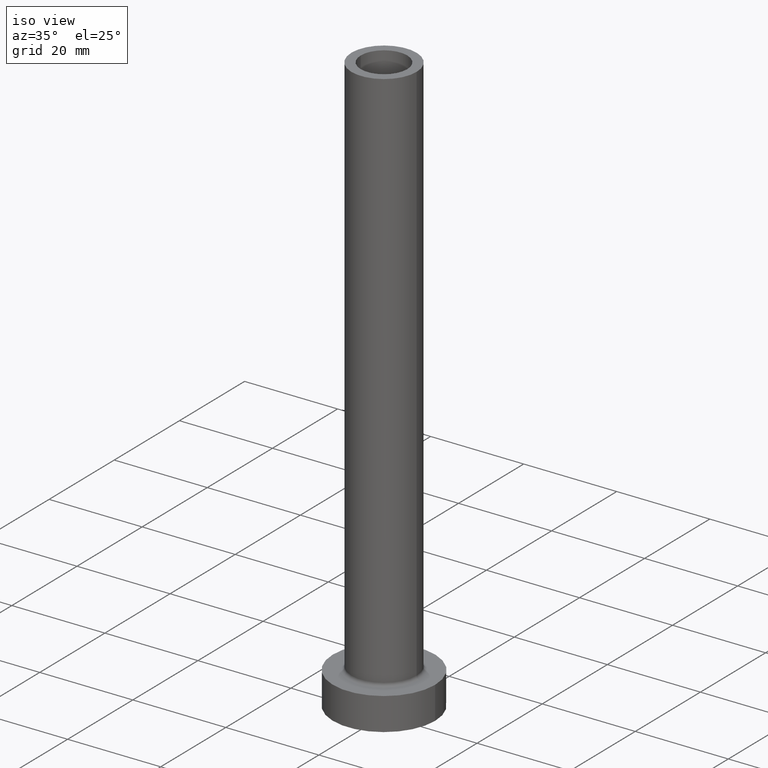
[diagram: clean part render]
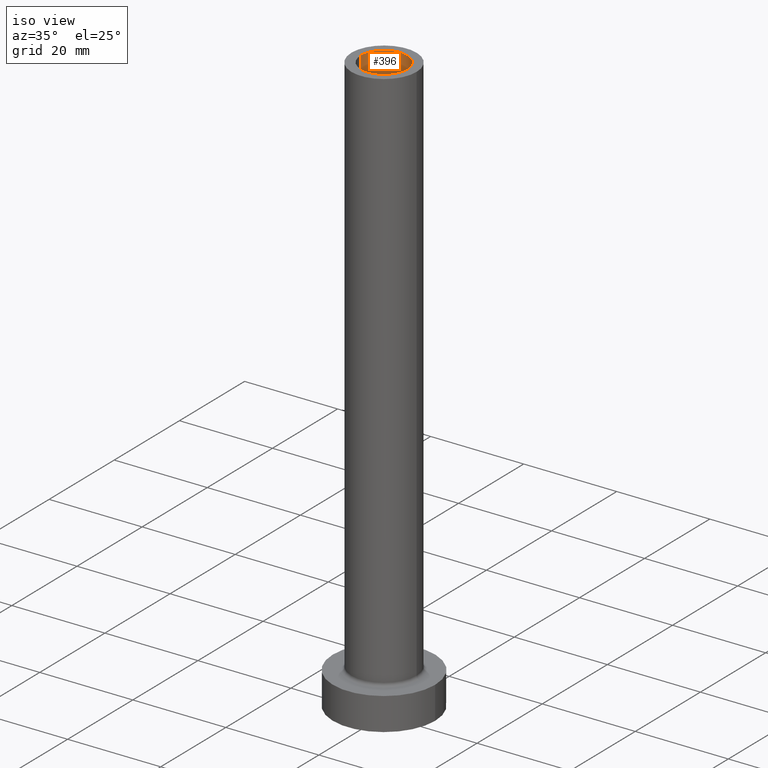
[diagram: same view with one face highlighted and labeled with its STEP entity id]
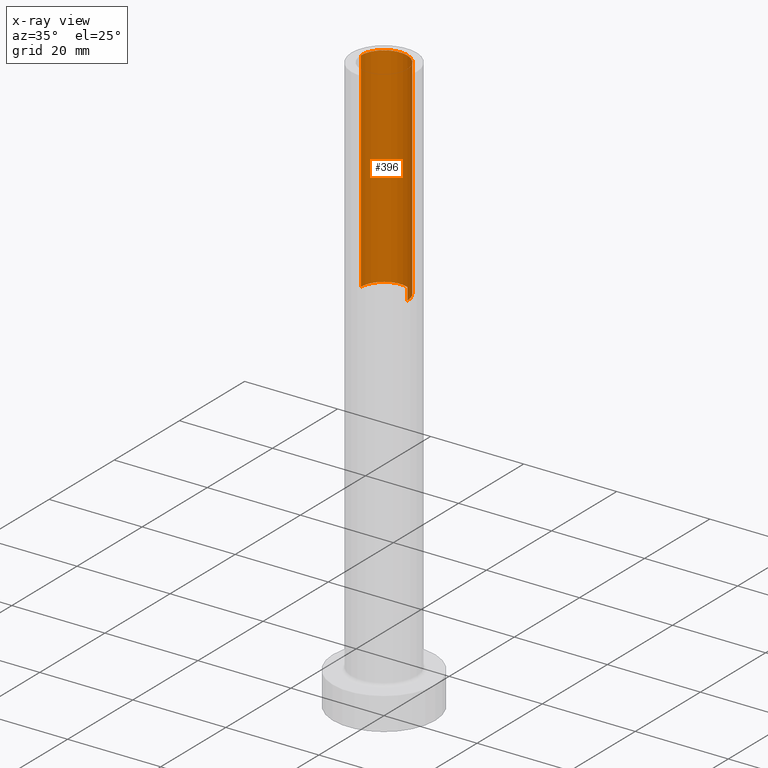
[diagram: x-ray of the same camera — body ghosted, the highlighted face saturated]
A machine part, iso view. The second image highlights one B-rep face of the part: STEP entity #396.
The next image is the same camera in x-ray: the body ghosted, the highlighted face saturated — about 0% of this face is hidden behind the body in this view.
In plain terms, the highlighted cylindrical surface (edge-blend (fillet) strip) has radius 5 mm, axis along (0, 0, -1).
Its self-contained STEP definition (entity closure, byte-faithful):
#7 = VERTEX_POINT ( 'NONE', #266 ) ;
#10 = AXIS2_PLACEMENT_3D ( 'NONE', #129, #20, #204 ) ;
#20 = DIRECTION ( 'NONE',  ( 0.000000000000000000, 0.000000000000000000, 1.000000000000000000 ) ) ;
#38 = ORIENTED_EDGE ( 'NONE', *, *, #273, .F. ) ;
#55 = DIRECTION ( 'NONE',  ( 0.000000000000000000, 0.000000000000000000, -1.000000000000000000 ) ) ;
#56 = VERTEX_POINT ( 'NONE', #456 ) ;
#66 = DIRECTION ( 'NONE',  ( 1.000000000000000000, 0.000000000000000000, 0.000000000000000000 ) ) ;
#104 = CARTESIAN_POINT ( 'NONE',  ( 5.000000000000000000, 6.123233995736765296E-16, 125.0000000000000000 ) ) ;
#125 = EDGE_CURVE ( 'NONE', #7, #425, #402, .T. ) ;
#129 = CARTESIAN_POINT ( 'NONE',  ( 0.000000000000000000, 0.000000000000000000, 80.00000000000000000 ) ) ;
#132 = AXIS2_PLACEMENT_3D ( 'NONE', #248, #380, #66 ) ;
#133 = EDGE_LOOP ( 'NONE', ( #168, #146, #324, #38 ) ) ;
#144 = CYLINDRICAL_SURFACE ( 'NONE', #336, 5.000000000000000000 ) ;
#146 = ORIENTED_EDGE ( 'NONE', *, *, #125, .T. ) ;
#152 = VECTOR ( 'NONE', #269, 1000.000000000000000 ) ;
#168 = ORIENTED_EDGE ( 'NONE', *, *, #337, .F. ) ;
#193 = CIRCLE ( 'NONE', #10, 5.000000000000000000 ) ;
#204 = DIRECTION ( 'NONE',  ( 1.000000000000000000, 0.000000000000000000, 0.000000000000000000 ) ) ;
#224 = CARTESIAN_POINT ( 'NONE',  ( 5.000000000000000000, 6.123233995736765296E-16, 80.00000000000000000 ) ) ;
#248 = CARTESIAN_POINT ( 'NONE',  ( 0.000000000000000000, 0.000000000000000000, 125.0000000000000000 ) ) ;
#266 = CARTESIAN_POINT ( 'NONE',  ( 5.000000000000000000, 6.123233995736765296E-16, 125.0000000000000000 ) ) ;
#269 = DIRECTION ( 'NONE',  ( 0.000000000000000000, 0.000000000000000000, -1.000000000000000000 ) ) ;
#273 = EDGE_CURVE ( 'NONE', #407, #56, #193, .T. ) ;
#317 = CARTESIAN_POINT ( 'NONE',  ( -5.000000000000000000, 0.000000000000000000, 125.0000000000000000 ) ) ;
#319 = EDGE_CURVE ( 'NONE', #425, #56, #379, .T. ) ;
#320 = DIRECTION ( 'NONE',  ( 0.000000000000000000, 0.000000000000000000, -1.000000000000000000 ) ) ;
#324 = ORIENTED_EDGE ( 'NONE', *, *, #319, .T. ) ;
#336 = AXIS2_PLACEMENT_3D ( 'NONE', #385, #320, #349 ) ;
#337 = EDGE_CURVE ( 'NONE', #7, #407, #416, .T. ) ;
#349 = DIRECTION ( 'NONE',  ( -1.000000000000000000, 0.000000000000000000, 0.000000000000000000 ) ) ;
#379 = LINE ( 'NONE', #449, #152 ) ;
#380 = DIRECTION ( 'NONE',  ( 0.000000000000000000, 0.000000000000000000, 1.000000000000000000 ) ) ;
#385 = CARTESIAN_POINT ( 'NONE',  ( 0.000000000000000000, 0.000000000000000000, 125.0000000000000000 ) ) ;
#396 = ADVANCED_FACE ( 'NONE', ( #426 ), #144, .F. ) ;
#402 = CIRCLE ( 'NONE', #132, 5.000000000000000000 ) ;
#407 = VERTEX_POINT ( 'NONE', #224 ) ;
#416 = LINE ( 'NONE', #104, #442 ) ;
#425 = VERTEX_POINT ( 'NONE', #317 ) ;
#426 = FACE_OUTER_BOUND ( 'NONE', #133, .T. ) ;
#442 = VECTOR ( 'NONE', #55, 1000.000000000000000 ) ;
#449 = CARTESIAN_POINT ( 'NONE',  ( -5.000000000000000000, 0.000000000000000000, 125.0000000000000000 ) ) ;
#456 = CARTESIAN_POINT ( 'NONE',  ( -5.000000000000000000, 0.000000000000000000, 80.00000000000000000 ) ) ;